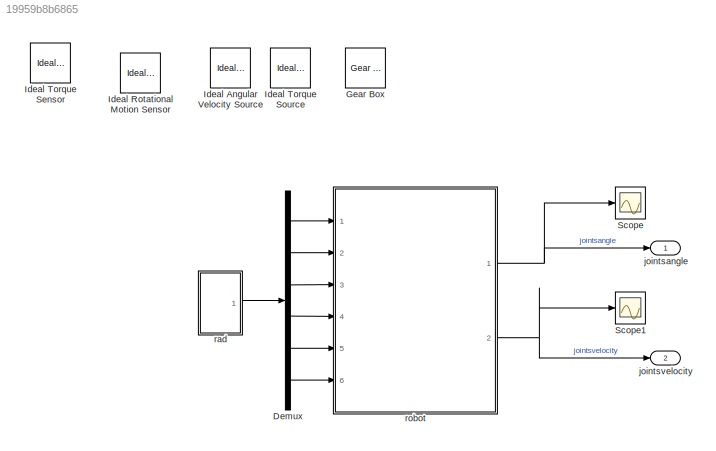
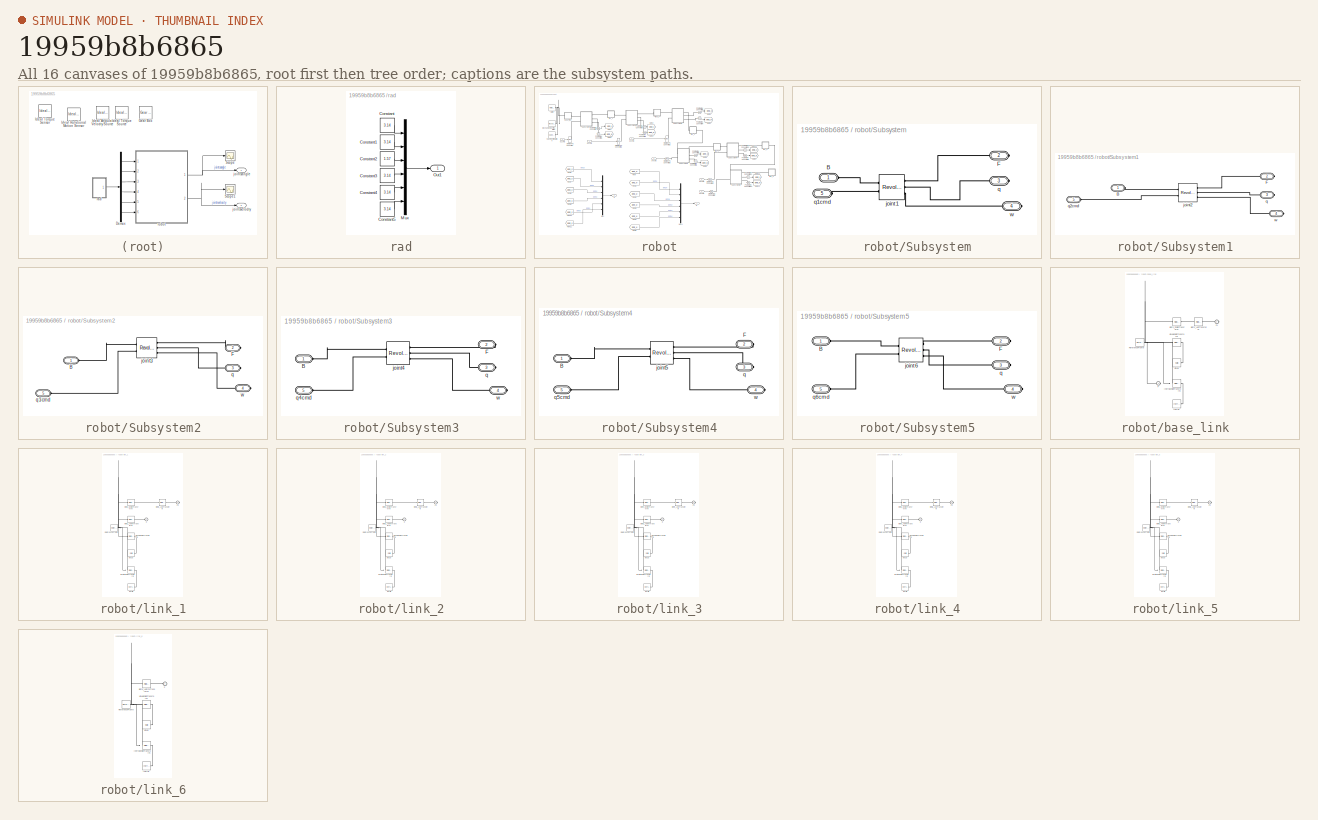
[diagram: thumbnail index - all 16 canvases of the model, root first then tree order]
MODEL slx_19959b8b6865
KIND model
CONFIG AbsTol = auto
CONFIG EnableMultiTasking = off
CONFIG FixedStep = auto
CONFIG MaxStep = auto
CONFIG MinStep = auto
CONFIG RelTol = 1e-3
CONFIG SampleTimeConstraint = Unconstrained
CONFIG Solver = VariableStepAuto
CONFIG SolverName = VariableStepAuto
CONFIG StartTime = 0.0
CONFIG StopTime = 10.0
BLOCK [Demux] Demux
  DisplayOption = bar
  Outputs = 6
  Ports = [1, 6]
BLOCK [Reference] Gear Box  REF=fl_lib/Mechanical/Mechanisms/Gear Box
  Commented = on
  Ports = [0, 0, 0, 0, 0, 1, 1]
  SourceBlock = fl_lib/Mechanical/Mechanisms/Gear Box
  SourceProductBaseCode = SS
  SourceProductName = Simscape
  SourceType = Gear Box
BLOCK [Reference] Ideal Angular Velocity Source  REF=fl_lib/Mechanical/Mechanical Sources/Ideal Angular
Velocity Source
  Commented = on
  Ports = [0, 0, 0, 0, 0, 1, 2]
  SourceBlock = fl_lib/Mechanical/Mechanical Sources/Ideal Angular\nVelocity Source
  SourceProductBaseCode = SS
  SourceProductName = Simscape
  SourceType = Ideal Angular\nVelocity Source
BLOCK [Reference] Ideal Rotational Motion Sensor  REF=fl_lib/Mechanical/Mechanical Sensors/Ideal Rotational
Motion Sensor
  Commented = on
  Ports = [0, 0, 0, 0, 0, 1, 3]
  SourceBlock = fl_lib/Mechanical/Mechanical Sensors/Ideal Rotational\nMotion Sensor
  SourceProductBaseCode = SS
  SourceProductName = Simscape
  SourceType = Ideal Rotational\nMotion Sensor
BLOCK [Reference] Ideal Torque Sensor  REF=fl_lib/Mechanical/Mechanical Sensors/Ideal Torque Sensor
  Commented = on
  Ports = [0, 0, 0, 0, 0, 1, 2]
  SourceBlock = fl_lib/Mechanical/Mechanical Sensors/Ideal Torque Sensor
  SourceProductBaseCode = SS
  SourceProductName = Simscape
  SourceType = Ideal Torque Sensor
BLOCK [Reference] Ideal Torque Source  REF=fl_lib/Mechanical/Mechanical Sources/Ideal Torque Source
  Commented = on
  Ports = [0, 0, 0, 0, 0, 1, 2]
  SourceBlock = fl_lib/Mechanical/Mechanical Sources/Ideal Torque Source
  SourceProductBaseCode = SS
  SourceProductName = Simscape
  SourceType = Ideal Torque Source
BLOCK [Scope] Scope
  Floating = off
  NumInputPorts = 1
  Ports = [1]
  ScopeSpecificationString = Simulink.scopes.TimeScopeBlockCfg('CurrentConfiguration', extmgr.ConfigurationSet(extmgr.Configuration('Core','General UI',true),extmgr.Configuration('Core','Source UI',true),extmgr.Configuration('Sources','WiredSimulink',true),extmgr.Configuration('Visuals','Time Domain',true,'SerializedDisplays',{struct('MinYLimReal','179.04931','MaxYLimReal','1253.34518','YLabelReal','','MinYLimMag','179.04931'...<+1458ch>
BLOCK [Scope] Scope1
  Floating = off
  NumInputPorts = 1
  Ports = [1]
  ScopeSpecificationString = Simulink.scopes.TimeScopeBlockCfg('CurrentConfiguration', extmgr.ConfigurationSet(extmgr.Configuration('Core','General UI',true),extmgr.Configuration('Core','Source UI',true),extmgr.Configuration('Sources','WiredSimulink',true,'DataLoggingVariableName','ScopeData1'),extmgr.Configuration('Visuals','Time Domain',true,'SerializedDisplays',{struct('MinYLimReal','-1.00000','MaxYLimReal','1.00000','YLab...<+1522ch>
BLOCK [Outport] jointsangle
  IconDisplay = Port number
  Unit = deg
BLOCK [Outport] jointsvelocity
  IconDisplay = Port number
  Port = 2
  Unit = deg/s
BLOCK [SubSystem] rad
  Ports = [0, 1]
  RequestExecContextInheritance = off
BLOCK [Constant] rad/Constant
  Value = 3.14
BLOCK [Constant] rad/Constant1
  Value = 3.14
BLOCK [Constant] rad/Constant2
  Value = 1.57
BLOCK [Constant] rad/Constant3
  Value = 3.14
BLOCK [Constant] rad/Constant4
  Value = 3.14
BLOCK [Constant] rad/Constant5
  Value = 3.14
BLOCK [Mux] rad/Mux
  DisplayOption = bar
  Inputs = 6
  Ports = [6, 1]
BLOCK [Outport] rad/Out1
  IconDisplay = Port number
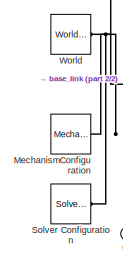
[diagram: robot - part 1/2, top left region]
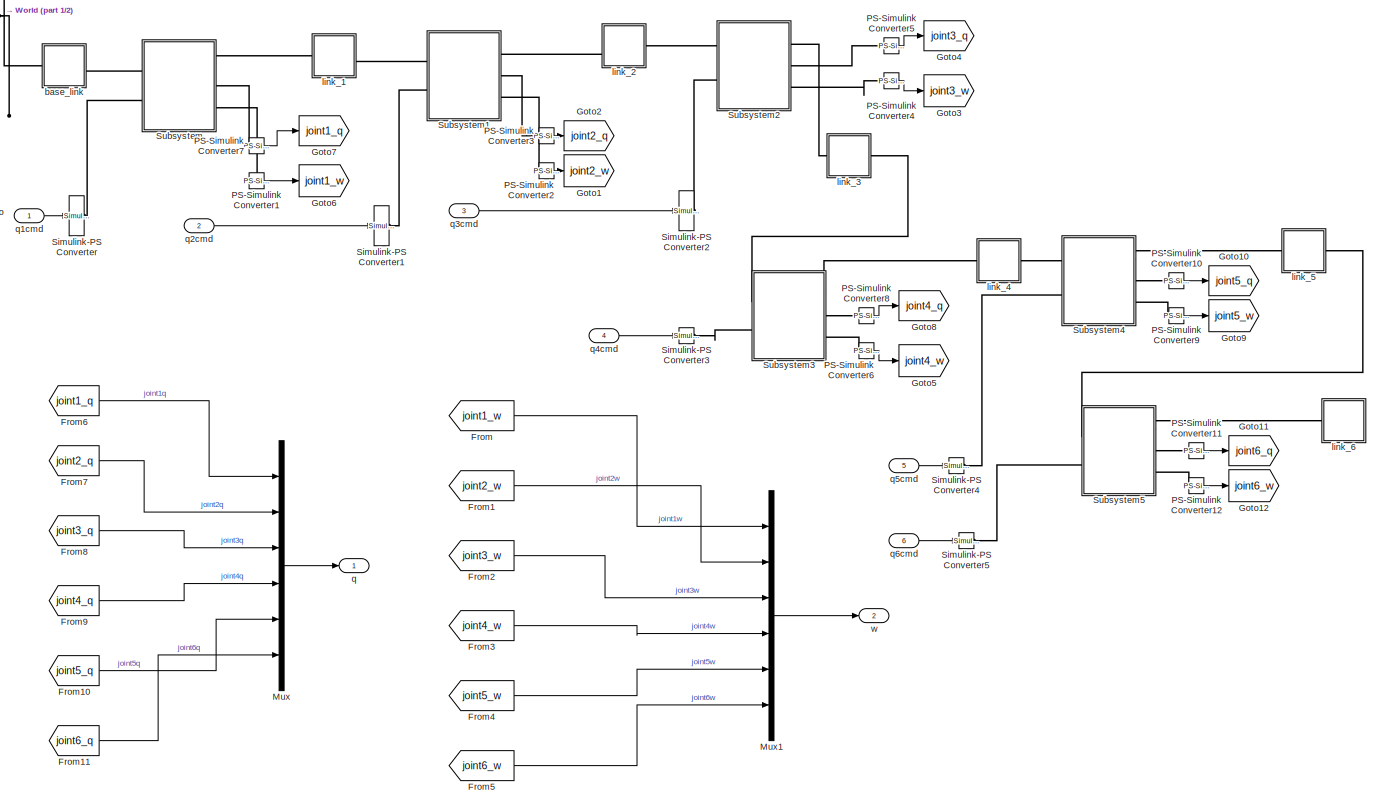
[diagram: robot - part 2/2, most of the canvas]
BLOCK [SubSystem] robot
  Ports = [6, 2]
  RequestExecContextInheritance = off
BLOCK [From] robot/From
  GotoTag = joint1_w
BLOCK [From] robot/From1
  GotoTag = joint2_w
BLOCK [From] robot/From10
  GotoTag = joint5_q
  TagVisibility = global
BLOCK [From] robot/From11
  GotoTag = joint6_q
  TagVisibility = global
BLOCK [From] robot/From2
  GotoTag = joint3_w
BLOCK [From] robot/From3
  GotoTag = joint4_w
BLOCK [From] robot/From4
  GotoTag = joint5_w
BLOCK [From] robot/From5
  GotoTag = joint6_w
BLOCK [From] robot/From6
  GotoTag = joint1_q
  TagVisibility = global
BLOCK [From] robot/From7
  GotoTag = joint2_q
  TagVisibility = global
BLOCK [From] robot/From8
  GotoTag = joint3_q
  TagVisibility = global
BLOCK [From] robot/From9
  GotoTag = joint4_q
  TagVisibility = global
BLOCK [Goto] robot/Goto1
  GotoTag = joint2_w
BLOCK [Goto] robot/Goto10
  GotoTag = joint5_q
  TagVisibility = global
BLOCK [Goto] robot/Goto11
  GotoTag = joint6_q
  TagVisibility = global
BLOCK [Goto] robot/Goto12
  GotoTag = joint6_w
BLOCK [Goto] robot/Goto2
  GotoTag = joint2_q
  TagVisibility = global
BLOCK [Goto] robot/Goto3
  GotoTag = joint3_w
BLOCK [Goto] robot/Goto4
  GotoTag = joint3_q
  TagVisibility = global
BLOCK [Goto] robot/Goto5
  GotoTag = joint4_w
BLOCK [Goto] robot/Goto6
  GotoTag = joint1_w
BLOCK [Goto] robot/Goto7
  GotoTag = joint1_q
  TagVisibility = global
BLOCK [Goto] robot/Goto8
  GotoTag = joint4_q
  TagVisibility = global
BLOCK [Goto] robot/Goto9
  GotoTag = joint5_w
BLOCK [Reference] robot/MechanismConfiguration  REF=sm_lib/Utilities/Mechanism
Configuration
  Ports = [0, 0, 0, 0, 0, 0, 1]
  SourceBlock = sm_lib/Utilities/Mechanism\nConfiguration
  SourceProductBaseCode = MS
  SourceProductName = Simscape Multibody
  SourceType = Mechanism\nConfiguration
BLOCK [Mux] robot/Mux
  DisplayOption = bar
  Inputs = 6
  Ports = [6, 1]
BLOCK [Mux] robot/Mux1
  DisplayOption = bar
  Inputs = 6
  Ports = [6, 1]
BLOCK [Reference] robot/PS-Simulink Converter1  REF=nesl_utility/PS-Simulink
Converter
  Ports = [0, 1, 0, 0, 0, 1]
  SourceBlock = nesl_utility/PS-Simulink\nConverter
  SourceProductBaseCode = SS
  SourceProductName = Simscape
  SourceType = PS-Simulink\nConverter
BLOCK [Reference] robot/PS-Simulink Converter10  REF=nesl_utility/PS-Simulink
Converter
  Ports = [0, 1, 0, 0, 0, 1]
  SourceBlock = nesl_utility/PS-Simulink\nConverter
  SourceProductBaseCode = SS
  SourceProductName = Simscape
  SourceType = PS-Simulink\nConverter
BLOCK [Reference] robot/PS-Simulink Converter11  REF=nesl_utility/PS-Simulink
Converter
  Ports = [0, 1, 0, 0, 0, 1]
  SourceBlock = nesl_utility/PS-Simulink\nConverter
  SourceProductBaseCode = SS
  SourceProductName = Simscape
  SourceType = PS-Simulink\nConverter
BLOCK [Reference] robot/PS-Simulink Converter12  REF=nesl_utility/PS-Simulink
Converter
  Ports = [0, 1, 0, 0, 0, 1]
  SourceBlock = nesl_utility/PS-Simulink\nConverter
  SourceProductBaseCode = SS
  SourceProductName = Simscape
  SourceType = PS-Simulink\nConverter
BLOCK [Reference] robot/PS-Simulink Converter2  REF=nesl_utility/PS-Simulink
Converter
  Ports = [0, 1, 0, 0, 0, 1]
  SourceBlock = nesl_utility/PS-Simulink\nConverter
  SourceProductBaseCode = SS
  SourceProductName = Simscape
  SourceType = PS-Simulink\nConverter
BLOCK [Reference] robot/PS-Simulink Converter3  REF=nesl_utility/PS-Simulink
Converter
  Ports = [0, 1, 0, 0, 0, 1]
  SourceBlock = nesl_utility/PS-Simulink\nConverter
  SourceProductBaseCode = SS
  SourceProductName = Simscape
  SourceType = PS-Simulink\nConverter
BLOCK [Reference] robot/PS-Simulink Converter4  REF=nesl_utility/PS-Simulink
Converter
  Ports = [0, 1, 0, 0, 0, 1]
  SourceBlock = nesl_utility/PS-Simulink\nConverter
  SourceProductBaseCode = SS
  SourceProductName = Simscape
  SourceType = PS-Simulink\nConverter
BLOCK [Reference] robot/PS-Simulink Converter5  REF=nesl_utility/PS-Simulink
Converter
  Ports = [0, 1, 0, 0, 0, 1]
  SourceBlock = nesl_utility/PS-Simulink\nConverter
  SourceProductBaseCode = SS
  SourceProductName = Simscape
  SourceType = PS-Simulink\nConverter
BLOCK [Reference] robot/PS-Simulink Converter6  REF=nesl_utility/PS-Simulink
Converter
  Ports = [0, 1, 0, 0, 0, 1]
  SourceBlock = nesl_utility/PS-Simulink\nConverter
  SourceProductBaseCode = SS
  SourceProductName = Simscape
  SourceType = PS-Simulink\nConverter
BLOCK [Reference] robot/PS-Simulink Converter7  REF=nesl_utility/PS-Simulink
Converter
  Ports = [0, 1, 0, 0, 0, 1]
  SourceBlock = nesl_utility/PS-Simulink\nConverter
  SourceProductBaseCode = SS
  SourceProductName = Simscape
  SourceType = PS-Simulink\nConverter
BLOCK [Reference] robot/PS-Simulink Converter8  REF=nesl_utility/PS-Simulink
Converter
  Ports = [0, 1, 0, 0, 0, 1]
  SourceBlock = nesl_utility/PS-Simulink\nConverter
  SourceProductBaseCode = SS
  SourceProductName = Simscape
  SourceType = PS-Simulink\nConverter
BLOCK [Reference] robot/PS-Simulink Converter9  REF=nesl_utility/PS-Simulink
Converter
  Ports = [0, 1, 0, 0, 0, 1]
  SourceBlock = nesl_utility/PS-Simulink\nConverter
  SourceProductBaseCode = SS
  SourceProductName = Simscape
  SourceType = PS-Simulink\nConverter
BLOCK [Reference] robot/Simulink-PS Converter  REF=nesl_utility/Simulink-PS
Converter
  Ports = [1, 0, 0, 0, 0, 0, 1]
  SourceBlock = nesl_utility/Simulink-PS\nConverter
  SourceProductBaseCode = SS
  SourceProductName = Simscape
  SourceType = Simulink-PS\nConverter
BLOCK [Reference] robot/Simulink-PS Converter1  REF=nesl_utility/Simulink-PS
Converter
  Ports = [1, 0, 0, 0, 0, 0, 1]
  SourceBlock = nesl_utility/Simulink-PS\nConverter
  SourceProductBaseCode = SS
  SourceProductName = Simscape
  SourceType = Simulink-PS\nConverter
BLOCK [Reference] robot/Simulink-PS Converter2  REF=nesl_utility/Simulink-PS
Converter
  Ports = [1, 0, 0, 0, 0, 0, 1]
  SourceBlock = nesl_utility/Simulink-PS\nConverter
  SourceProductBaseCode = SS
  SourceProductName = Simscape
  SourceType = Simulink-PS\nConverter
BLOCK [Reference] robot/Simulink-PS Converter3  REF=nesl_utility/Simulink-PS
Converter
  Ports = [1, 0, 0, 0, 0, 0, 1]
  SourceBlock = nesl_utility/Simulink-PS\nConverter
  SourceProductBaseCode = SS
  SourceProductName = Simscape
  SourceType = Simulink-PS\nConverter
BLOCK [Reference] robot/Simulink-PS Converter4  REF=nesl_utility/Simulink-PS
Converter
  Ports = [1, 0, 0, 0, 0, 0, 1]
  SourceBlock = nesl_utility/Simulink-PS\nConverter
  SourceProductBaseCode = SS
  SourceProductName = Simscape
  SourceType = Simulink-PS\nConverter
BLOCK [Reference] robot/Simulink-PS Converter5  REF=nesl_utility/Simulink-PS
Converter
  Ports = [1, 0, 0, 0, 0, 0, 1]
  SourceBlock = nesl_utility/Simulink-PS\nConverter
  SourceProductBaseCode = SS
  SourceProductName = Simscape
  SourceType = Simulink-PS\nConverter
BLOCK [Reference] robot/Solver Configuration  REF=nesl_utility/Solver
Configuration
  Ports = [0, 0, 0, 0, 0, 0, 1]
  SourceBlock = nesl_utility/Solver\nConfiguration
  SourceProductBaseCode = SS
  SourceProductName = Simscape
  SourceType = Solver\nConfiguration
BLOCK [SubSystem] robot/Subsystem
  Ports = [0, 0, 0, 0, 0, 2, 3]
  RequestExecContextInheritance = off
BLOCK [PMIOPort] robot/Subsystem/B
  Side = Left
BLOCK [PMIOPort] robot/Subsystem/F
  Port = 2
  Side = Right
BLOCK [Reference] robot/Subsystem/joint1  REF=sm_lib/Joints/Revolute Joint
  Ports = [0, 0, 0, 0, 0, 2, 3]
  SourceBlock = sm_lib/Joints/Revolute Joint
  SourceProductBaseCode = MS
  SourceProductName = Simscape Multibody
  SourceType = Revolute Joint
BLOCK [PMIOPort] robot/Subsystem/q
  Port = 3
  Side = Right
BLOCK [PMIOPort] robot/Subsystem/q1cmd
  Port = 5
  Side = Left
BLOCK [PMIOPort] robot/Subsystem/w
  Port = 4
  Side = Right
BLOCK [SubSystem] robot/Subsystem1
  Ports = [0, 0, 0, 0, 0, 2, 3]
  RequestExecContextInheritance = off
BLOCK [PMIOPort] robot/Subsystem1/B
  Side = Left
BLOCK [PMIOPort] robot/Subsystem1/F
  Port = 2
  Side = Right
BLOCK [Reference] robot/Subsystem1/joint2  REF=sm_lib/Joints/Revolute Joint
  Ports = [0, 0, 0, 0, 0, 2, 3]
  SourceBlock = sm_lib/Joints/Revolute Joint
  SourceProductBaseCode = MS
  SourceProductName = Simscape Multibody
  SourceType = Revolute Joint
BLOCK [PMIOPort] robot/Subsystem1/q
  Port = 3
  Side = Right
BLOCK [PMIOPort] robot/Subsystem1/q2cmd
  Port = 5
  Side = Left
BLOCK [PMIOPort] robot/Subsystem1/w
  Port = 4
  Side = Right
BLOCK [SubSystem] robot/Subsystem2
  Ports = [0, 0, 0, 0, 0, 2, 3]
  RequestExecContextInheritance = off
BLOCK [PMIOPort] robot/Subsystem2/B
  Side = Left
BLOCK [PMIOPort] robot/Subsystem2/F
  Port = 2
  Side = Right
BLOCK [Reference] robot/Subsystem2/joint3  REF=sm_lib/Joints/Revolute Joint
  Ports = [0, 0, 0, 0, 0, 2, 3]
  SourceBlock = sm_lib/Joints/Revolute Joint
  SourceProductBaseCode = MS
  SourceProductName = Simscape Multibody
  SourceType = Revolute Joint
BLOCK [PMIOPort] robot/Subsystem2/q
  Port = 3
  Side = Right
BLOCK [PMIOPort] robot/Subsystem2/q3cmd
  Port = 5
  Side = Left
BLOCK [PMIOPort] robot/Subsystem2/w
  Port = 4
  Side = Right
BLOCK [SubSystem] robot/Subsystem3
  Ports = [0, 0, 0, 0, 0, 2, 3]
  RequestExecContextInheritance = off
BLOCK [PMIOPort] robot/Subsystem3/B
  Side = Left
BLOCK [PMIOPort] robot/Subsystem3/F
  Port = 2
  Side = Right
BLOCK [Reference] robot/Subsystem3/joint4  REF=sm_lib/Joints/Revolute Joint
  Ports = [0, 0, 0, 0, 0, 2, 3]
  SourceBlock = sm_lib/Joints/Revolute Joint
  SourceProductBaseCode = MS
  SourceProductName = Simscape Multibody
  SourceType = Revolute Joint
BLOCK [PMIOPort] robot/Subsystem3/q
  Port = 3
  Side = Right
BLOCK [PMIOPort] robot/Subsystem3/q4cmd
  Port = 5
  Side = Left
BLOCK [PMIOPort] robot/Subsystem3/w
  Port = 4
  Side = Right
BLOCK [SubSystem] robot/Subsystem4
  Ports = [0, 0, 0, 0, 0, 2, 3]
  RequestExecContextInheritance = off
BLOCK [PMIOPort] robot/Subsystem4/B
  Side = Left
BLOCK [PMIOPort] robot/Subsystem4/F
  Port = 2
  Side = Right
BLOCK [Reference] robot/Subsystem4/joint5  REF=sm_lib/Joints/Revolute Joint
  Ports = [0, 0, 0, 0, 0, 2, 3]
  SourceBlock = sm_lib/Joints/Revolute Joint
  SourceProductBaseCode = MS
  SourceProductName = Simscape Multibody
  SourceType = Revolute Joint
BLOCK [PMIOPort] robot/Subsystem4/q
  Port = 3
  Side = Right
BLOCK [PMIOPort] robot/Subsystem4/q5cmd
  Port = 5
  Side = Left
BLOCK [PMIOPort] robot/Subsystem4/w
  Port = 4
  Side = Right
BLOCK [SubSystem] robot/Subsystem5
  Ports = [0, 0, 0, 0, 0, 2, 3]
  RequestExecContextInheritance = off
BLOCK [PMIOPort] robot/Subsystem5/B
  Side = Left
BLOCK [PMIOPort] robot/Subsystem5/F
  Port = 2
  Side = Right
BLOCK [Reference] robot/Subsystem5/joint6  REF=sm_lib/Joints/Revolute Joint
  Ports = [0, 0, 0, 0, 0, 2, 3]
  SourceBlock = sm_lib/Joints/Revolute Joint
  SourceProductBaseCode = MS
  SourceProductName = Simscape Multibody
  SourceType = Revolute Joint
BLOCK [PMIOPort] robot/Subsystem5/q
  Port = 3
  Side = Right
BLOCK [PMIOPort] robot/Subsystem5/q6cmd
  Port = 5
  Side = Left
BLOCK [PMIOPort] robot/Subsystem5/w
  Port = 4
  Side = Right
BLOCK [Reference] robot/World  REF=sm_lib/Frames and
Transforms/World Frame
  Ports = [0, 0, 0, 0, 0, 0, 1]
  SourceBlock = sm_lib/Frames and\nTransforms/World Frame
  SourceProductBaseCode = MS
  SourceProductName = Simscape Multibody
  SourceType = World Frame
BLOCK [SubSystem] robot/base_link
  Ports = [0, 0, 0, 0, 0, 1, 1]
  RequestExecContextInheritance = off
BLOCK [PMIOPort] robot/base_link/F
  Side = Left
BLOCK [PMIOPort] robot/base_link/F1
  Port = 2
  Side = Right
BLOCK [Reference] robot/base_link/Inertia  REF=sm_lib/Body Elements/Inertia
  Ports = [0, 0, 0, 0, 0, 0, 1]
  SourceBlock = sm_lib/Body Elements/Inertia
  SourceProductBaseCode = MS
  SourceProductName = Simscape Multibody
  SourceType = Inertia
BLOCK [Reference] robot/base_link/InertiaOriginTransform  REF=sm_lib/Frames and
Transforms/Rigid
Transform
  Ports = [0, 0, 0, 0, 0, 1, 1]
  SourceBlock = sm_lib/Frames and\nTransforms/Rigid\nTransform
  SourceProductBaseCode = MS
  SourceProductName = Simscape Multibody
  SourceType = Rigid\nTransform
BLOCK [Reference] robot/base_link/ReferenceFrame  REF=sm_lib/Frames and
Transforms/Reference
Frame
  Ports = [0, 0, 0, 0, 0, 0, 1]
  SourceBlock = sm_lib/Frames and\nTransforms/Reference\nFrame
  SourceProductBaseCode = MS
  SourceProductName = Simscape Multibody
  SourceType = Reference\nFrame
BLOCK [Reference] robot/base_link/Visual  REF=sm_lib/Body Elements/Solid
  Ports = [0, 0, 0, 0, 0, 0, 1]
  SourceBlock = sm_lib/Body Elements/Solid
  SourceProductBaseCode = MS
  SourceProductName = Simscape Multibody
  SourceType = Solid
BLOCK [Reference] robot/base_link/VisualOriginTransform  REF=sm_lib/Frames and
Transforms/Rigid
Transform
  Ports = [0, 0, 0, 0, 0, 1, 1]
  SourceBlock = sm_lib/Frames and\nTransforms/Rigid\nTransform
  SourceProductBaseCode = MS
  SourceProductName = Simscape Multibody
  SourceType = Rigid\nTransform
BLOCK [Reference] robot/base_link/joint1_AxisTransform  REF=sm_lib/Frames and
Transforms/Rigid
Transform
  Ports = [0, 0, 0, 0, 0, 1, 1]
  SourceBlock = sm_lib/Frames and\nTransforms/Rigid\nTransform
  SourceProductBaseCode = MS
  SourceProductName = Simscape Multibody
  SourceType = Rigid\nTransform
BLOCK [Reference] robot/base_link/joint1_OriginTransform  REF=sm_lib/Frames and
Transforms/Rigid
Transform
  Ports = [0, 0, 0, 0, 0, 1, 1]
  SourceBlock = sm_lib/Frames and\nTransforms/Rigid\nTransform
  SourceProductBaseCode = MS
  SourceProductName = Simscape Multibody
  SourceType = Rigid\nTransform
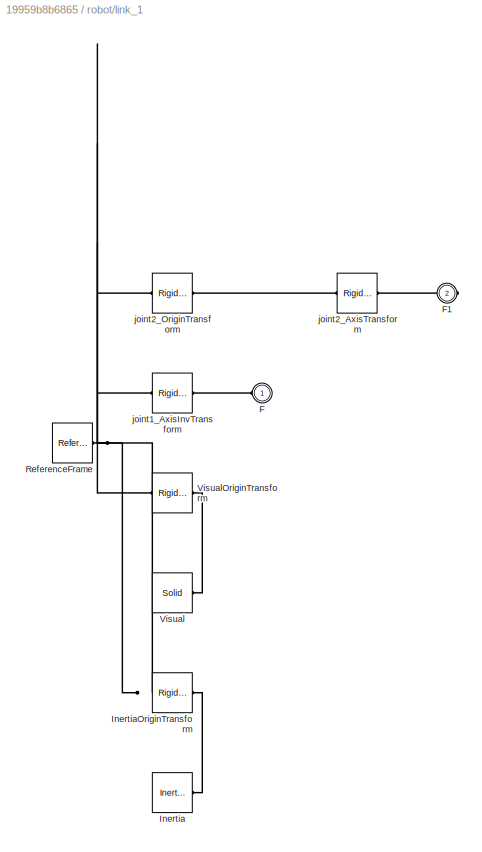
BLOCK [SubSystem] robot/link_1
  Ports = [0, 0, 0, 0, 0, 1, 1]
  RequestExecContextInheritance = off
BLOCK [PMIOPort] robot/link_1/F
  Side = Left
BLOCK [PMIOPort] robot/link_1/F1
  Port = 2
  Side = Right
BLOCK [Reference] robot/link_1/Inertia  REF=sm_lib/Body Elements/Inertia
  Ports = [0, 0, 0, 0, 0, 0, 1]
  SourceBlock = sm_lib/Body Elements/Inertia
  SourceProductBaseCode = MS
  SourceProductName = Simscape Multibody
  SourceType = Inertia
BLOCK [Reference] robot/link_1/InertiaOriginTransform  REF=sm_lib/Frames and
Transforms/Rigid
Transform
  Ports = [0, 0, 0, 0, 0, 1, 1]
  SourceBlock = sm_lib/Frames and\nTransforms/Rigid\nTransform
  SourceProductBaseCode = MS
  SourceProductName = Simscape Multibody
  SourceType = Rigid\nTransform
BLOCK [Reference] robot/link_1/ReferenceFrame  REF=sm_lib/Frames and
Transforms/Reference
Frame
  Ports = [0, 0, 0, 0, 0, 0, 1]
  SourceBlock = sm_lib/Frames and\nTransforms/Reference\nFrame
  SourceProductBaseCode = MS
  SourceProductName = Simscape Multibody
  SourceType = Reference\nFrame
BLOCK [Reference] robot/link_1/Visual  REF=sm_lib/Body Elements/Solid
  Ports = [0, 0, 0, 0, 0, 0, 1]
  SourceBlock = sm_lib/Body Elements/Solid
  SourceProductBaseCode = MS
  SourceProductName = Simscape Multibody
  SourceType = Solid
BLOCK [Reference] robot/link_1/VisualOriginTransform  REF=sm_lib/Frames and
Transforms/Rigid
Transform
  Ports = [0, 0, 0, 0, 0, 1, 1]
  SourceBlock = sm_lib/Frames and\nTransforms/Rigid\nTransform
  SourceProductBaseCode = MS
  SourceProductName = Simscape Multibody
  SourceType = Rigid\nTransform
BLOCK [Reference] robot/link_1/joint1_AxisInvTransform  REF=sm_lib/Frames and
Transforms/Rigid
Transform
  Ports = [0, 0, 0, 0, 0, 1, 1]
  SourceBlock = sm_lib/Frames and\nTransforms/Rigid\nTransform
  SourceProductBaseCode = MS
  SourceProductName = Simscape Multibody
  SourceType = Rigid\nTransform
BLOCK [Reference] robot/link_1/joint2_AxisTransform  REF=sm_lib/Frames and
Transforms/Rigid
Transform
  Ports = [0, 0, 0, 0, 0, 1, 1]
  SourceBlock = sm_lib/Frames and\nTransforms/Rigid\nTransform
  SourceProductBaseCode = MS
  SourceProductName = Simscape Multibody
  SourceType = Rigid\nTransform
BLOCK [Reference] robot/link_1/joint2_OriginTransform  REF=sm_lib/Frames and
Transforms/Rigid
Transform
  Ports = [0, 0, 0, 0, 0, 1, 1]
  SourceBlock = sm_lib/Frames and\nTransforms/Rigid\nTransform
  SourceProductBaseCode = MS
  SourceProductName = Simscape Multibody
  SourceType = Rigid\nTransform
BLOCK [SubSystem] robot/link_2
  Ports = [0, 0, 0, 0, 0, 1, 1]
  RequestExecContextInheritance = off
BLOCK [PMIOPort] robot/link_2/F
  Side = Left
BLOCK [PMIOPort] robot/link_2/F1
  Port = 2
  Side = Right
BLOCK [Reference] robot/link_2/Inertia  REF=sm_lib/Body Elements/Inertia
  Ports = [0, 0, 0, 0, 0, 0, 1]
  SourceBlock = sm_lib/Body Elements/Inertia
  SourceProductBaseCode = MS
  SourceProductName = Simscape Multibody
  SourceType = Inertia
BLOCK [Reference] robot/link_2/InertiaOriginTransform  REF=sm_lib/Frames and
Transforms/Rigid
Transform
  Ports = [0, 0, 0, 0, 0, 1, 1]
  SourceBlock = sm_lib/Frames and\nTransforms/Rigid\nTransform
  SourceProductBaseCode = MS
  SourceProductName = Simscape Multibody
  SourceType = Rigid\nTransform
BLOCK [Reference] robot/link_2/ReferenceFrame  REF=sm_lib/Frames and
Transforms/Reference
Frame
  Ports = [0, 0, 0, 0, 0, 0, 1]
  SourceBlock = sm_lib/Frames and\nTransforms/Reference\nFrame
  SourceProductBaseCode = MS
  SourceProductName = Simscape Multibody
  SourceType = Reference\nFrame
BLOCK [Reference] robot/link_2/Visual  REF=sm_lib/Body Elements/Solid
  Ports = [0, 0, 0, 0, 0, 0, 1]
  SourceBlock = sm_lib/Body Elements/Solid
  SourceProductBaseCode = MS
  SourceProductName = Simscape Multibody
  SourceType = Solid
BLOCK [Reference] robot/link_2/VisualOriginTransform  REF=sm_lib/Frames and
Transforms/Rigid
Transform
  Ports = [0, 0, 0, 0, 0, 1, 1]
  SourceBlock = sm_lib/Frames and\nTransforms/Rigid\nTransform
  SourceProductBaseCode = MS
  SourceProductName = Simscape Multibody
  SourceType = Rigid\nTransform
BLOCK [Reference] robot/link_2/joint2_AxisInvTransform  REF=sm_lib/Frames and
Transforms/Rigid
Transform
  Ports = [0, 0, 0, 0, 0, 1, 1]
  SourceBlock = sm_lib/Frames and\nTransforms/Rigid\nTransform
  SourceProductBaseCode = MS
  SourceProductName = Simscape Multibody
  SourceType = Rigid\nTransform
BLOCK [Reference] robot/link_2/joint3_AxisTransform  REF=sm_lib/Frames and
Transforms/Rigid
Transform
  Ports = [0, 0, 0, 0, 0, 1, 1]
  SourceBlock = sm_lib/Frames and\nTransforms/Rigid\nTransform
  SourceProductBaseCode = MS
  SourceProductName = Simscape Multibody
  SourceType = Rigid\nTransform
BLOCK [Reference] robot/link_2/joint3_OriginTransform  REF=sm_lib/Frames and
Transforms/Rigid
Transform
  Ports = [0, 0, 0, 0, 0, 1, 1]
  SourceBlock = sm_lib/Frames and\nTransforms/Rigid\nTransform
  SourceProductBaseCode = MS
  SourceProductName = Simscape Multibody
  SourceType = Rigid\nTransform
BLOCK [SubSystem] robot/link_3
  Ports = [0, 0, 0, 0, 0, 1, 1]
  RequestExecContextInheritance = off
BLOCK [PMIOPort] robot/link_3/F
  Side = Left
BLOCK [PMIOPort] robot/link_3/F1
  Port = 2
  Side = Right
BLOCK [Reference] robot/link_3/Inertia  REF=sm_lib/Body Elements/Inertia
  Ports = [0, 0, 0, 0, 0, 0, 1]
  SourceBlock = sm_lib/Body Elements/Inertia
  SourceProductBaseCode = MS
  SourceProductName = Simscape Multibody
  SourceType = Inertia
BLOCK [Reference] robot/link_3/InertiaOriginTransform  REF=sm_lib/Frames and
Transforms/Rigid
Transform
  Ports = [0, 0, 0, 0, 0, 1, 1]
  SourceBlock = sm_lib/Frames and\nTransforms/Rigid\nTransform
  SourceProductBaseCode = MS
  SourceProductName = Simscape Multibody
  SourceType = Rigid\nTransform
BLOCK [Reference] robot/link_3/ReferenceFrame  REF=sm_lib/Frames and
Transforms/Reference
Frame
  Ports = [0, 0, 0, 0, 0, 0, 1]
  SourceBlock = sm_lib/Frames and\nTransforms/Reference\nFrame
  SourceProductBaseCode = MS
  SourceProductName = Simscape Multibody
  SourceType = Reference\nFrame
BLOCK [Reference] robot/link_3/Visual  REF=sm_lib/Body Elements/Solid
  Ports = [0, 0, 0, 0, 0, 0, 1]
  SourceBlock = sm_lib/Body Elements/Solid
  SourceProductBaseCode = MS
  SourceProductName = Simscape Multibody
  SourceType = Solid
BLOCK [Reference] robot/link_3/VisualOriginTransform  REF=sm_lib/Frames and
Transforms/Rigid
Transform
  Ports = [0, 0, 0, 0, 0, 1, 1]
  SourceBlock = sm_lib/Frames and\nTransforms/Rigid\nTransform
  SourceProductBaseCode = MS
  SourceProductName = Simscape Multibody
  SourceType = Rigid\nTransform
BLOCK [Reference] robot/link_3/joint3_AxisInvTransform  REF=sm_lib/Frames and
Transforms/Rigid
Transform
  Ports = [0, 0, 0, 0, 0, 1, 1]
  SourceBlock = sm_lib/Frames and\nTransforms/Rigid\nTransform
  SourceProductBaseCode = MS
  SourceProductName = Simscape Multibody
  SourceType = Rigid\nTransform
BLOCK [Reference] robot/link_3/joint4_AxisTransform  REF=sm_lib/Frames and
Transforms/Rigid
Transform
  Ports = [0, 0, 0, 0, 0, 1, 1]
  SourceBlock = sm_lib/Frames and\nTransforms/Rigid\nTransform
  SourceProductBaseCode = MS
  SourceProductName = Simscape Multibody
  SourceType = Rigid\nTransform
BLOCK [Reference] robot/link_3/joint4_OriginTransform  REF=sm_lib/Frames and
Transforms/Rigid
Transform
  Ports = [0, 0, 0, 0, 0, 1, 1]
  SourceBlock = sm_lib/Frames and\nTransforms/Rigid\nTransform
  SourceProductBaseCode = MS
  SourceProductName = Simscape Multibody
  SourceType = Rigid\nTransform
BLOCK [SubSystem] robot/link_4
  Ports = [0, 0, 0, 0, 0, 1, 1]
  RequestExecContextInheritance = off
BLOCK [PMIOPort] robot/link_4/F
  Side = Left
BLOCK [PMIOPort] robot/link_4/F1
  Port = 2
  Side = Right
BLOCK [Reference] robot/link_4/Inertia  REF=sm_lib/Body Elements/Inertia
  Ports = [0, 0, 0, 0, 0, 0, 1]
  SourceBlock = sm_lib/Body Elements/Inertia
  SourceProductBaseCode = MS
  SourceProductName = Simscape Multibody
  SourceType = Inertia
BLOCK [Reference] robot/link_4/InertiaOriginTransform  REF=sm_lib/Frames and
Transforms/Rigid
Transform
  Ports = [0, 0, 0, 0, 0, 1, 1]
  SourceBlock = sm_lib/Frames and\nTransforms/Rigid\nTransform
  SourceProductBaseCode = MS
  SourceProductName = Simscape Multibody
  SourceType = Rigid\nTransform
BLOCK [Reference] robot/link_4/ReferenceFrame  REF=sm_lib/Frames and
Transforms/Reference
Frame
  Ports = [0, 0, 0, 0, 0, 0, 1]
  SourceBlock = sm_lib/Frames and\nTransforms/Reference\nFrame
  SourceProductBaseCode = MS
  SourceProductName = Simscape Multibody
  SourceType = Reference\nFrame
BLOCK [Reference] robot/link_4/Visual  REF=sm_lib/Body Elements/Solid
  Ports = [0, 0, 0, 0, 0, 0, 1]
  SourceBlock = sm_lib/Body Elements/Solid
  SourceProductBaseCode = MS
  SourceProductName = Simscape Multibody
  SourceType = Solid
BLOCK [Reference] robot/link_4/VisualOriginTransform  REF=sm_lib/Frames and
Transforms/Rigid
Transform
  Ports = [0, 0, 0, 0, 0, 1, 1]
  SourceBlock = sm_lib/Frames and\nTransforms/Rigid\nTransform
  SourceProductBaseCode = MS
  SourceProductName = Simscape Multibody
  SourceType = Rigid\nTransform
BLOCK [Reference] robot/link_4/joint4_AxisInvTransform  REF=sm_lib/Frames and
Transforms/Rigid
Transform
  Ports = [0, 0, 0, 0, 0, 1, 1]
  SourceBlock = sm_lib/Frames and\nTransforms/Rigid\nTransform
  SourceProductBaseCode = MS
  SourceProductName = Simscape Multibody
  SourceType = Rigid\nTransform
BLOCK [Reference] robot/link_4/joint5_AxisTransform  REF=sm_lib/Frames and
Transforms/Rigid
Transform
  Ports = [0, 0, 0, 0, 0, 1, 1]
  SourceBlock = sm_lib/Frames and\nTransforms/Rigid\nTransform
  SourceProductBaseCode = MS
  SourceProductName = Simscape Multibody
  SourceType = Rigid\nTransform
BLOCK [Reference] robot/link_4/joint5_OriginTransform  REF=sm_lib/Frames and
Transforms/Rigid
Transform
  Ports = [0, 0, 0, 0, 0, 1, 1]
  SourceBlock = sm_lib/Frames and\nTransforms/Rigid\nTransform
  SourceProductBaseCode = MS
  SourceProductName = Simscape Multibody
  SourceType = Rigid\nTransform
BLOCK [SubSystem] robot/link_5
  Ports = [0, 0, 0, 0, 0, 1, 1]
  RequestExecContextInheritance = off
BLOCK [PMIOPort] robot/link_5/F
  Side = Left
BLOCK [PMIOPort] robot/link_5/F1
  Port = 2
  Side = Right
BLOCK [Reference] robot/link_5/Inertia  REF=sm_lib/Body Elements/Inertia
  Ports = [0, 0, 0, 0, 0, 0, 1]
  SourceBlock = sm_lib/Body Elements/Inertia
  SourceProductBaseCode = MS
  SourceProductName = Simscape Multibody
  SourceType = Inertia
BLOCK [Reference] robot/link_5/InertiaOriginTransform  REF=sm_lib/Frames and
Transforms/Rigid
Transform
  Ports = [0, 0, 0, 0, 0, 1, 1]
  SourceBlock = sm_lib/Frames and\nTransforms/Rigid\nTransform
  SourceProductBaseCode = MS
  SourceProductName = Simscape Multibody
  SourceType = Rigid\nTransform
BLOCK [Reference] robot/link_5/ReferenceFrame  REF=sm_lib/Frames and
Transforms/Reference
Frame
  Ports = [0, 0, 0, 0, 0, 0, 1]
  SourceBlock = sm_lib/Frames and\nTransforms/Reference\nFrame
  SourceProductBaseCode = MS
  SourceProductName = Simscape Multibody
  SourceType = Reference\nFrame
BLOCK [Reference] robot/link_5/Visual  REF=sm_lib/Body Elements/Solid
  Ports = [0, 0, 0, 0, 0, 0, 1]
  SourceBlock = sm_lib/Body Elements/Solid
  SourceProductBaseCode = MS
  SourceProductName = Simscape Multibody
  SourceType = Solid
BLOCK [Reference] robot/link_5/VisualOriginTransform  REF=sm_lib/Frames and
Transforms/Rigid
Transform
  Ports = [0, 0, 0, 0, 0, 1, 1]
  SourceBlock = sm_lib/Frames and\nTransforms/Rigid\nTransform
  SourceProductBaseCode = MS
  SourceProductName = Simscape Multibody
  SourceType = Rigid\nTransform
BLOCK [Reference] robot/link_5/joint5_AxisInvTransform  REF=sm_lib/Frames and
Transforms/Rigid
Transform
  Ports = [0, 0, 0, 0, 0, 1, 1]
  SourceBlock = sm_lib/Frames and\nTransforms/Rigid\nTransform
  SourceProductBaseCode = MS
  SourceProductName = Simscape Multibody
  SourceType = Rigid\nTransform
BLOCK [Reference] robot/link_5/joint6_AxisTransform  REF=sm_lib/Frames and
Transforms/Rigid
Transform
  Ports = [0, 0, 0, 0, 0, 1, 1]
  SourceBlock = sm_lib/Frames and\nTransforms/Rigid\nTransform
  SourceProductBaseCode = MS
  SourceProductName = Simscape Multibody
  SourceType = Rigid\nTransform
BLOCK [Reference] robot/link_5/joint6_OriginTransform  REF=sm_lib/Frames and
Transforms/Rigid
Transform
  Ports = [0, 0, 0, 0, 0, 1, 1]
  SourceBlock = sm_lib/Frames and\nTransforms/Rigid\nTransform
  SourceProductBaseCode = MS
  SourceProductName = Simscape Multibody
  SourceType = Rigid\nTransform
BLOCK [SubSystem] robot/link_6
  Ports = [0, 0, 0, 0, 0, 1]
  RequestExecContextInheritance = off
BLOCK [PMIOPort] robot/link_6/F
  Side = Left
BLOCK [Reference] robot/link_6/Inertia  REF=sm_lib/Body Elements/Inertia
  Ports = [0, 0, 0, 0, 0, 0, 1]
  SourceBlock = sm_lib/Body Elements/Inertia
  SourceProductBaseCode = MS
  SourceProductName = Simscape Multibody
  SourceType = Inertia
BLOCK [Reference] robot/link_6/InertiaOriginTransform  REF=sm_lib/Frames and
Transforms/Rigid
Transform
  Ports = [0, 0, 0, 0, 0, 1, 1]
  SourceBlock = sm_lib/Frames and\nTransforms/Rigid\nTransform
  SourceProductBaseCode = MS
  SourceProductName = Simscape Multibody
  SourceType = Rigid\nTransform
BLOCK [Reference] robot/link_6/ReferenceFrame  REF=sm_lib/Frames and
Transforms/Reference
Frame
  Ports = [0, 0, 0, 0, 0, 0, 1]
  SourceBlock = sm_lib/Frames and\nTransforms/Reference\nFrame
  SourceProductBaseCode = MS
  SourceProductName = Simscape Multibody
  SourceType = Reference\nFrame
BLOCK [Reference] robot/link_6/Visual  REF=sm_lib/Body Elements/Solid
  Ports = [0, 0, 0, 0, 0, 0, 1]
  SourceBlock = sm_lib/Body Elements/Solid
  SourceProductBaseCode = MS
  SourceProductName = Simscape Multibody
  SourceType = Solid
BLOCK [Reference] robot/link_6/VisualOriginTransform  REF=sm_lib/Frames and
Transforms/Rigid
Transform
  Ports = [0, 0, 0, 0, 0, 1, 1]
  SourceBlock = sm_lib/Frames and\nTransforms/Rigid\nTransform
  SourceProductBaseCode = MS
  SourceProductName = Simscape Multibody
  SourceType = Rigid\nTransform
BLOCK [Reference] robot/link_6/joint6_AxisInvTransform  REF=sm_lib/Frames and
Transforms/Rigid
Transform
  Ports = [0, 0, 0, 0, 0, 1, 1]
  SourceBlock = sm_lib/Frames and\nTransforms/Rigid\nTransform
  SourceProductBaseCode = MS
  SourceProductName = Simscape Multibody
  SourceType = Rigid\nTransform
BLOCK [Outport] robot/q
  IconDisplay = Port number
  Unit = deg
BLOCK [Inport] robot/q1cmd
  IconDisplay = Port number
BLOCK [Inport] robot/q2cmd
  IconDisplay = Port number
  Port = 2
BLOCK [Inport] robot/q3cmd
  IconDisplay = Port number
  Port = 3
BLOCK [Inport] robot/q4cmd
  IconDisplay = Port number
  Port = 4
BLOCK [Inport] robot/q5cmd
  IconDisplay = Port number
  Port = 5
BLOCK [Inport] robot/q6cmd
  IconDisplay = Port number
  Port = 6
BLOCK [Outport] robot/w
  IconDisplay = Port number
  Port = 2
  Unit = deg/s
LINE Demux:1 -> robot:1
LINE Demux:2 -> robot:2
LINE Demux:3 -> robot:3
LINE Demux:4 -> robot:4
LINE Demux:5 -> robot:5
LINE Demux:6 -> robot:6
LINE rad/Constant1:1 -> rad/Mux:2
LINE rad/Constant2:1 -> rad/Mux:3
LINE rad/Constant3:1 -> rad/Mux:4
LINE rad/Constant4:1 -> rad/Mux:5
LINE rad/Constant5:1 -> rad/Mux:6
LINE rad/Constant:1 -> rad/Mux:1
LINE rad/Mux:1 -> rad/Out1:1
LINE rad:1 -> Demux:1
LINE robot/From10:1 -> robot/Mux:5
LINE robot/From11:1 -> robot/Mux:6
LINE robot/From1:1 -> robot/Mux1:2
LINE robot/From2:1 -> robot/Mux1:3
LINE robot/From3:1 -> robot/Mux1:4
LINE robot/From4:1 -> robot/Mux1:5
LINE robot/From5:1 -> robot/Mux1:6
LINE robot/From6:1 -> robot/Mux:1
LINE robot/From7:1 -> robot/Mux:2
LINE robot/From8:1 -> robot/Mux:3
LINE robot/From9:1 -> robot/Mux:4
LINE robot/From:1 -> robot/Mux1:1
LINE robot/Mux1:1 -> robot/w:1
LINE robot/Mux:1 -> robot/q:1
LINE robot/PS-Simulink Converter10:1 -> robot/Goto10:1
LINE robot/PS-Simulink Converter11:1 -> robot/Goto11:1
LINE robot/PS-Simulink Converter12:1 -> robot/Goto12:1
LINE robot/PS-Simulink Converter1:1 -> robot/Goto6:1
LINE robot/PS-Simulink Converter2:1 -> robot/Goto1:1
LINE robot/PS-Simulink Converter3:1 -> robot/Goto2:1
LINE robot/PS-Simulink Converter4:1 -> robot/Goto3:1
LINE robot/PS-Simulink Converter5:1 -> robot/Goto4:1
LINE robot/PS-Simulink Converter6:1 -> robot/Goto5:1
LINE robot/PS-Simulink Converter7:1 -> robot/Goto7:1
LINE robot/PS-Simulink Converter8:1 -> robot/Goto8:1
LINE robot/PS-Simulink Converter9:1 -> robot/Goto9:1
LINE robot/q1cmd:1 -> robot/Simulink-PS Converter:1
LINE robot/q2cmd:1 -> robot/Simulink-PS Converter1:1
LINE robot/q3cmd:1 -> robot/Simulink-PS Converter2:1
LINE robot/q4cmd:1 -> robot/Simulink-PS Converter3:1
LINE robot/q5cmd:1 -> robot/Simulink-PS Converter4:1
LINE robot/q6cmd:1 -> robot/Simulink-PS Converter5:1
NET robot:1 -> Scope:1, jointsangle:1
NET robot:2 -> Scope1:1, jointsvelocity:1
PNET net1: robot/MechanismConfiguration:RConn1 -- robot/Solver Configuration:RConn1 -- robot/World:RConn1 -- robot/base_link:LConn1
PLINE robot/PS-Simulink Converter10:LConn1 -- robot/Subsystem4:RConn2
PLINE robot/PS-Simulink Converter11:LConn1 -- robot/Subsystem5:RConn2
PLINE robot/PS-Simulink Converter12:LConn1 -- robot/Subsystem5:RConn3
PLINE robot/PS-Simulink Converter1:LConn1 -- robot/Subsystem:RConn3
PLINE robot/PS-Simulink Converter2:LConn1 -- robot/Subsystem1:RConn3
PLINE robot/PS-Simulink Converter3:LConn1 -- robot/Subsystem1:RConn2
PLINE robot/PS-Simulink Converter4:LConn1 -- robot/Subsystem2:RConn3
PLINE robot/PS-Simulink Converter5:LConn1 -- robot/Subsystem2:RConn2
PLINE robot/PS-Simulink Converter6:LConn1 -- robot/Subsystem3:RConn3
PLINE robot/PS-Simulink Converter7:LConn1 -- robot/Subsystem:RConn2
PLINE robot/PS-Simulink Converter8:LConn1 -- robot/Subsystem3:RConn2
PLINE robot/PS-Simulink Converter9:LConn1 -- robot/Subsystem4:RConn3
PLINE robot/Simulink-PS Converter1:RConn1 -- robot/Subsystem1:LConn2
PLINE robot/Simulink-PS Converter2:RConn1 -- robot/Subsystem2:LConn2
PLINE robot/Simulink-PS Converter3:RConn1 -- robot/Subsystem3:LConn2
PLINE robot/Simulink-PS Converter4:RConn1 -- robot/Subsystem4:LConn2
PLINE robot/Simulink-PS Converter5:RConn1 -- robot/Subsystem5:LConn2
PLINE robot/Simulink-PS Converter:RConn1 -- robot/Subsystem:LConn2
PLINE robot/Subsystem/B:RConn1 -- robot/Subsystem/joint1:LConn1
PLINE robot/Subsystem/F:RConn1 -- robot/Subsystem/joint1:RConn1
PLINE robot/Subsystem/joint1:LConn2 -- robot/Subsystem/q1cmd:RConn1
PLINE robot/Subsystem/joint1:RConn2 -- robot/Subsystem/q:RConn1
PLINE robot/Subsystem/joint1:RConn3 -- robot/Subsystem/w:RConn1
PLINE robot/Subsystem1/B:RConn1 -- robot/Subsystem1/joint2:LConn1
PLINE robot/Subsystem1/F:RConn1 -- robot/Subsystem1/joint2:RConn1
PLINE robot/Subsystem1/joint2:LConn2 -- robot/Subsystem1/q2cmd:RConn1
PLINE robot/Subsystem1/joint2:RConn2 -- robot/Subsystem1/q:RConn1
PLINE robot/Subsystem1/joint2:RConn3 -- robot/Subsystem1/w:RConn1
PLINE robot/Subsystem1:LConn1 -- robot/link_1:RConn1
PLINE robot/Subsystem1:RConn1 -- robot/link_2:LConn1
PLINE robot/Subsystem2/B:RConn1 -- robot/Subsystem2/joint3:LConn1
PLINE robot/Subsystem2/F:RConn1 -- robot/Subsystem2/joint3:RConn1
PLINE robot/Subsystem2/joint3:LConn2 -- robot/Subsystem2/q3cmd:RConn1
PLINE robot/Subsystem2/joint3:RConn2 -- robot/Subsystem2/q:RConn1
PLINE robot/Subsystem2/joint3:RConn3 -- robot/Subsystem2/w:RConn1
PLINE robot/Subsystem2:LConn1 -- robot/link_2:RConn1
PLINE robot/Subsystem2:RConn1 -- robot/link_3:LConn1
PLINE robot/Subsystem3/B:RConn1 -- robot/Subsystem3/joint4:LConn1
PLINE robot/Subsystem3/F:RConn1 -- robot/Subsystem3/joint4:RConn1
PLINE robot/Subsystem3/joint4:LConn2 -- robot/Subsystem3/q4cmd:RConn1
PLINE robot/Subsystem3/joint4:RConn2 -- robot/Subsystem3/q:RConn1
PLINE robot/Subsystem3/joint4:RConn3 -- robot/Subsystem3/w:RConn1
PLINE robot/Subsystem3:LConn1 -- robot/link_3:RConn1
PLINE robot/Subsystem3:RConn1 -- robot/link_4:LConn1
PLINE robot/Subsystem4/B:RConn1 -- robot/Subsystem4/joint5:LConn1
PLINE robot/Subsystem4/F:RConn1 -- robot/Subsystem4/joint5:RConn1
PLINE robot/Subsystem4/joint5:LConn2 -- robot/Subsystem4/q5cmd:RConn1
PLINE robot/Subsystem4/joint5:RConn2 -- robot/Subsystem4/q:RConn1
PLINE robot/Subsystem4/joint5:RConn3 -- robot/Subsystem4/w:RConn1
PLINE robot/Subsystem4:LConn1 -- robot/link_4:RConn1
PLINE robot/Subsystem4:RConn1 -- robot/link_5:LConn1
PLINE robot/Subsystem5/B:RConn1 -- robot/Subsystem5/joint6:LConn1
PLINE robot/Subsystem5/F:RConn1 -- robot/Subsystem5/joint6:RConn1
PLINE robot/Subsystem5/joint6:LConn2 -- robot/Subsystem5/q6cmd:RConn1
PLINE robot/Subsystem5/joint6:RConn2 -- robot/Subsystem5/q:RConn1
PLINE robot/Subsystem5/joint6:RConn3 -- robot/Subsystem5/w:RConn1
PLINE robot/Subsystem5:LConn1 -- robot/link_5:RConn1
PLINE robot/Subsystem5:RConn1 -- robot/link_6:LConn1
PLINE robot/Subsystem:LConn1 -- robot/base_link:RConn1
PLINE robot/Subsystem:RConn1 -- robot/link_1:LConn1
PLINE robot/base_link/F1:RConn1 -- robot/base_link/joint1_AxisTransform:RConn1
PNET net2: robot/base_link/F:RConn1 -- robot/base_link/InertiaOriginTransform:LConn1 -- robot/base_link/ReferenceFrame:RConn1 -- robot/base_link/VisualOriginTransform:LConn1 -- robot/base_link/joint1_OriginTransform:LConn1
PLINE robot/base_link/Inertia:RConn1 -- robot/base_link/InertiaOriginTransform:RConn1
PLINE robot/base_link/Visual:RConn1 -- robot/base_link/VisualOriginTransform:RConn1
PLINE robot/base_link/joint1_AxisTransform:LConn1 -- robot/base_link/joint1_OriginTransform:RConn1
PLINE robot/link_1/F1:RConn1 -- robot/link_1/joint2_AxisTransform:RConn1
PLINE robot/link_1/F:RConn1 -- robot/link_1/joint1_AxisInvTransform:RConn1
PLINE robot/link_1/Inertia:RConn1 -- robot/link_1/InertiaOriginTransform:RConn1
PNET net3: robot/link_1/InertiaOriginTransform:LConn1 -- robot/link_1/ReferenceFrame:RConn1 -- robot/link_1/VisualOriginTransform:LConn1 -- robot/link_1/joint1_AxisInvTransform:LConn1 -- robot/link_1/joint2_OriginTransform:LConn1
PLINE robot/link_1/Visual:RConn1 -- robot/link_1/VisualOriginTransform:RConn1
PLINE robot/link_1/joint2_AxisTransform:LConn1 -- robot/link_1/joint2_OriginTransform:RConn1
PLINE robot/link_2/F1:RConn1 -- robot/link_2/joint3_AxisTransform:RConn1
PLINE robot/link_2/F:RConn1 -- robot/link_2/joint2_AxisInvTransform:RConn1
PLINE robot/link_2/Inertia:RConn1 -- robot/link_2/InertiaOriginTransform:RConn1
PNET net4: robot/link_2/InertiaOriginTransform:LConn1 -- robot/link_2/ReferenceFrame:RConn1 -- robot/link_2/VisualOriginTransform:LConn1 -- robot/link_2/joint2_AxisInvTransform:LConn1 -- robot/link_2/joint3_OriginTransform:LConn1
PLINE robot/link_2/Visual:RConn1 -- robot/link_2/VisualOriginTransform:RConn1
PLINE robot/link_2/joint3_AxisTransform:LConn1 -- robot/link_2/joint3_OriginTransform:RConn1
PLINE robot/link_3/F1:RConn1 -- robot/link_3/joint4_AxisTransform:RConn1
PLINE robot/link_3/F:RConn1 -- robot/link_3/joint3_AxisInvTransform:RConn1
PLINE robot/link_3/Inertia:RConn1 -- robot/link_3/InertiaOriginTransform:RConn1
PNET net5: robot/link_3/InertiaOriginTransform:LConn1 -- robot/link_3/ReferenceFrame:RConn1 -- robot/link_3/VisualOriginTransform:LConn1 -- robot/link_3/joint3_AxisInvTransform:LConn1 -- robot/link_3/joint4_OriginTransform:LConn1
PLINE robot/link_3/Visual:RConn1 -- robot/link_3/VisualOriginTransform:RConn1
PLINE robot/link_3/joint4_AxisTransform:LConn1 -- robot/link_3/joint4_OriginTransform:RConn1
PLINE robot/link_4/F1:RConn1 -- robot/link_4/joint5_AxisTransform:RConn1
PLINE robot/link_4/F:RConn1 -- robot/link_4/joint4_AxisInvTransform:RConn1
PLINE robot/link_4/Inertia:RConn1 -- robot/link_4/InertiaOriginTransform:RConn1
PNET net6: robot/link_4/InertiaOriginTransform:LConn1 -- robot/link_4/ReferenceFrame:RConn1 -- robot/link_4/VisualOriginTransform:LConn1 -- robot/link_4/joint4_AxisInvTransform:LConn1 -- robot/link_4/joint5_OriginTransform:LConn1
PLINE robot/link_4/Visual:RConn1 -- robot/link_4/VisualOriginTransform:RConn1
PLINE robot/link_4/joint5_AxisTransform:LConn1 -- robot/link_4/joint5_OriginTransform:RConn1
PLINE robot/link_5/F1:RConn1 -- robot/link_5/joint6_AxisTransform:RConn1
PLINE robot/link_5/F:RConn1 -- robot/link_5/joint5_AxisInvTransform:RConn1
PLINE robot/link_5/Inertia:RConn1 -- robot/link_5/InertiaOriginTransform:RConn1
PNET net7: robot/link_5/InertiaOriginTransform:LConn1 -- robot/link_5/ReferenceFrame:RConn1 -- robot/link_5/VisualOriginTransform:LConn1 -- robot/link_5/joint5_AxisInvTransform:LConn1 -- robot/link_5/joint6_OriginTransform:LConn1
PLINE robot/link_5/Visual:RConn1 -- robot/link_5/VisualOriginTransform:RConn1
PLINE robot/link_5/joint6_AxisTransform:LConn1 -- robot/link_5/joint6_OriginTransform:RConn1
PLINE robot/link_6/F:RConn1 -- robot/link_6/joint6_AxisInvTransform:RConn1
PLINE robot/link_6/Inertia:RConn1 -- robot/link_6/InertiaOriginTransform:RConn1
PNET net8: robot/link_6/InertiaOriginTransform:LConn1 -- robot/link_6/ReferenceFrame:RConn1 -- robot/link_6/VisualOriginTransform:LConn1 -- robot/link_6/joint6_AxisInvTransform:LConn1
PLINE robot/link_6/Visual:RConn1 -- robot/link_6/VisualOriginTransform:RConn1
note: NET lines group one-source signal fan-out (src -> all destinations, sorted); 1:1 wires keep LINE; PNET lines group multi-terminal physical nets as a canonical sorted terminal list (undirected conserving connections); 2-terminal nets keep the pairwise PLINE form
